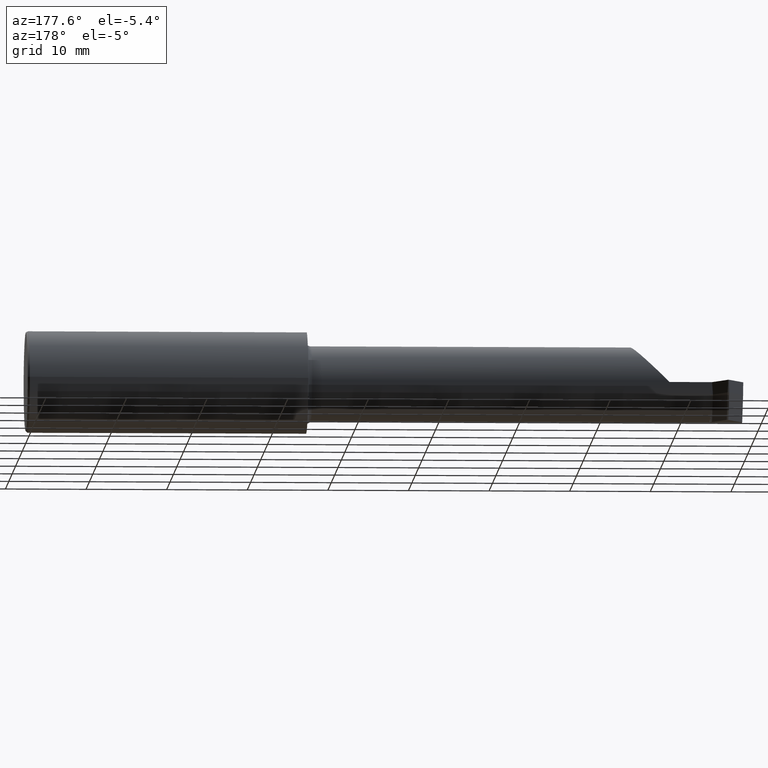
[diagram: clean part render]
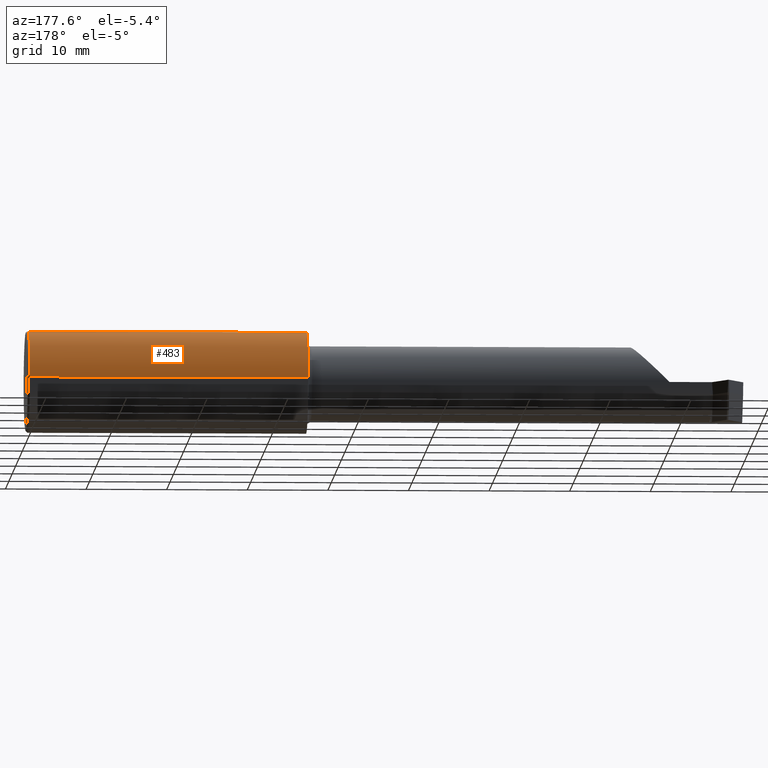
[diagram: same view with one face highlighted and labeled with its STEP entity id]
A machine part, auxiliary view. The second image highlights one B-rep face of the part: STEP entity #483.
In plain terms, the highlighted cylindrical surface (partial cylindrical patch) has radius 6.3462 mm, axis along (1, 0, -0).
Its self-contained STEP definition (entity closure, byte-faithful):
#72 = AXIS2_PLACEMENT_3D ( 'NONE', #839, #830, #549 ) ;
#83 = DIRECTION ( 'NONE',  ( -1.000000000000000000, -1.224646799147351728E-16, 0.000000000000000000 ) ) ;
#93 = CYLINDRICAL_SURFACE ( 'NONE', #356, 0.2498499999999999888 ) ;
#97 = VERTEX_POINT ( 'NONE', #763 ) ;
#98 = DIRECTION ( 'NONE',  ( 0.000000000000000000, 1.000000000000000000, 0.000000000000000000 ) ) ;
#119 = ORIENTED_EDGE ( 'NONE', *, *, #367, .T. ) ;
#124 = CARTESIAN_POINT ( 'NONE',  ( -1.370000000000000329, 0.2498500000000001831, 0.000000000000000000 ) ) ;
#129 = EDGE_LOOP ( 'NONE', ( #592, #119, #618, #538 ) ) ;
#133 = VECTOR ( 'NONE', #83, 39.37007874015748143 ) ;
#174 = VERTEX_POINT ( 'NONE', #747 ) ;
#213 = CARTESIAN_POINT ( 'NONE',  ( -3.500000000000000000, 0.06997856814768327327, 0.2398500000000000631 ) ) ;
#227 = AXIS2_PLACEMENT_3D ( 'NONE', #285, #272, #421 ) ;
#258 = EDGE_CURVE ( 'NONE', #97, #891, #425, .T. ) ;
#272 = DIRECTION ( 'NONE',  ( 1.000000000000000000, 7.384505942868129093E-18, 0.000000000000000000 ) ) ;
#285 = CARTESIAN_POINT ( 'NONE',  ( -1.370000000000000329, 1.996174282610182294E-16, 0.000000000000000000 ) ) ;
#296 = VERTEX_POINT ( 'NONE', #124 ) ;
#356 = AXIS2_PLACEMENT_3D ( 'NONE', #369, #734, #98 ) ;
#367 = EDGE_CURVE ( 'NONE', #296, #891, #719, .T. ) ;
#369 = CARTESIAN_POINT ( 'NONE',  ( -3.500000000000000000, -6.123233995736759873E-17, 0.000000000000000000 ) ) ;
#382 = EDGE_CURVE ( 'NONE', #97, #174, #537, .T. ) ;
#421 = DIRECTION ( 'NONE',  ( 0.000000000000000000, -1.000000000000000000, 0.000000000000000000 ) ) ;
#425 = LINE ( 'NONE', #213, #133 ) ;
#483 = ADVANCED_FACE ( 'NONE', ( #730 ), #93, .T. ) ;
#535 = CARTESIAN_POINT ( 'NONE',  ( -1.370000000000000329, 0.06997856814768370348, 0.2398500000000000631 ) ) ;
#537 = CIRCLE ( 'NONE', #72, 0.2498499999999999888 ) ;
#538 = ORIENTED_EDGE ( 'NONE', *, *, #382, .T. ) ;
#549 = DIRECTION ( 'NONE',  ( -1.195901037850825602E-16, 1.000000000000000000, -8.881784197001252323E-16 ) ) ;
#592 = ORIENTED_EDGE ( 'NONE', *, *, #800, .F. ) ;
#618 = ORIENTED_EDGE ( 'NONE', *, *, #258, .F. ) ;
#690 = VECTOR ( 'NONE', #728, 39.37007874015748143 ) ;
#719 = CIRCLE ( 'NONE', #227, 0.2498499999999999888 ) ;
#723 = LINE ( 'NONE', #857, #690 ) ;
#728 = DIRECTION ( 'NONE',  ( 1.000000000000000000, 1.224646799147351728E-16, -0.000000000000000000 ) ) ;
#730 = FACE_OUTER_BOUND ( 'NONE', #129, .T. ) ;
#734 = DIRECTION ( 'NONE',  ( 1.000000000000000000, 1.224646799147351728E-16, -0.000000000000000000 ) ) ;
#747 = CARTESIAN_POINT ( 'NONE',  ( -0.01000000000000019623, 0.2498500000000003496, 0.000000000000000000 ) ) ;
#763 = CARTESIAN_POINT ( 'NONE',  ( -0.01000000000000016674, 0.06997856814768370348, 0.2398500000000000631 ) ) ;
#800 = EDGE_CURVE ( 'NONE', #296, #174, #723, .T. ) ;
#830 = DIRECTION ( 'NONE',  ( -1.000000000000000000, -1.224646799147367998E-16, 0.000000000000000000 ) ) ;
#839 = CARTESIAN_POINT ( 'NONE',  ( -0.01000000000000016674, 3.661693929450580693E-16, 0.000000000000000000 ) ) ;
#857 = CARTESIAN_POINT ( 'NONE',  ( -3.500000000000000000, 0.2498499999999999333, 0.000000000000000000 ) ) ;
#891 = VERTEX_POINT ( 'NONE', #535 ) ;